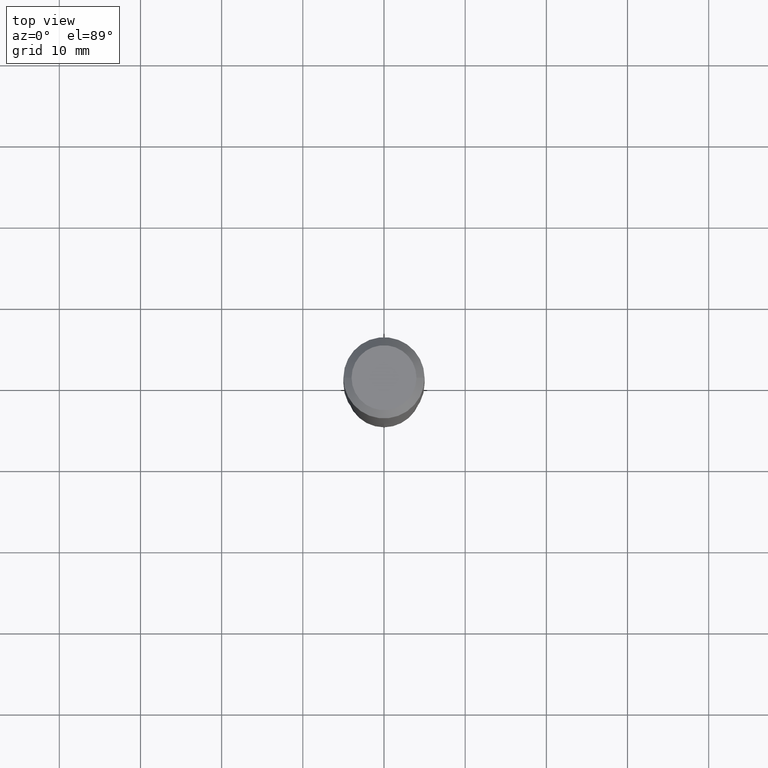
[diagram: clean part render]
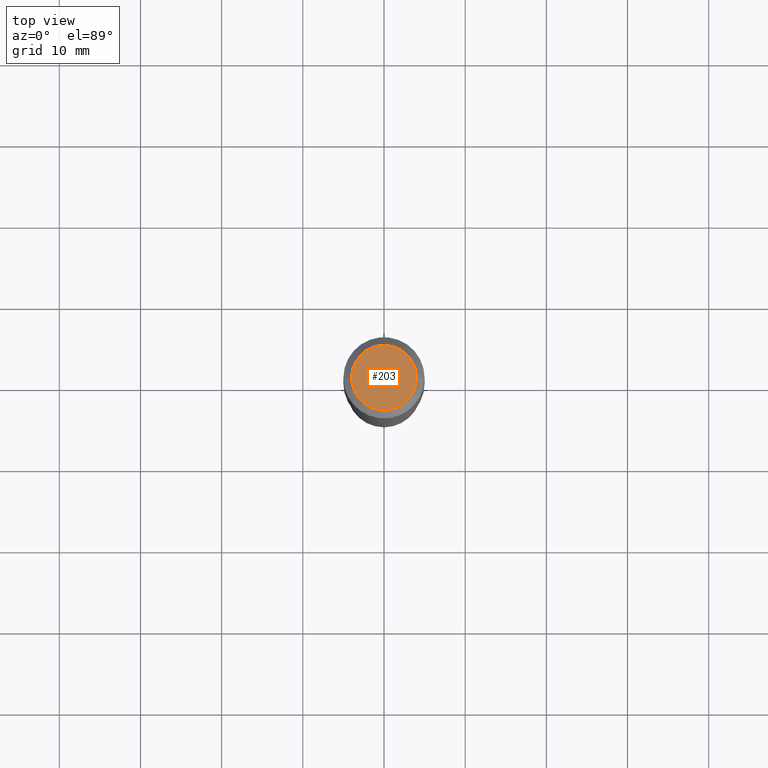
[diagram: same view with one face highlighted and labeled with its STEP entity id]
A machine part, top view. The second image highlights one B-rep face of the part: STEP entity #203.
In plain terms, the highlighted planar face has unit normal (0, -0, -1).
Its self-contained STEP definition (entity closure, byte-faithful):
#3 = DIRECTION ( 'NONE',  ( 2.438088387897960049E-29, -3.491481338843145188E-15, -1.000000000000000000 ) ) ;
#11 = CIRCLE ( 'NONE', #209, 0.1574800000000000089 ) ;
#57 = EDGE_CURVE ( 'NONE', #213, #336, #11, .T. ) ;
#78 = FACE_OUTER_BOUND ( 'NONE', #481, .T. ) ;
#84 = CARTESIAN_POINT ( 'NONE',  ( 0.1574800000000000089, -1.284169937930321189E-15, 3.855188123724205385E-18 ) ) ;
#85 = DIRECTION ( 'NONE',  ( 1.000000000000000000, -6.982962677686265922E-15, 4.876223630392693006E-29 ) ) ;
#110 = CARTESIAN_POINT ( 'NONE',  ( -4.713871149261283817E-47, 6.730158695841841775E-33, 1.927594061857935365E-18 ) ) ;
#133 = ORIENTED_EDGE ( 'NONE', *, *, #254, .T. ) ;
#162 = ORIENTED_EDGE ( 'NONE', *, *, #57, .T. ) ;
#201 = DIRECTION ( 'NONE',  ( -2.445468806185136597E-29, 3.491481338843145583E-15, 1.000000000000000000 ) ) ;
#203 = ADVANCED_FACE ( 'NONE', ( #78 ), #298, .F. ) ;
#209 = AXIS2_PLACEMENT_3D ( 'NONE', #308, #385, #338 ) ;
#213 = VERTEX_POINT ( 'NONE', #311 ) ;
#254 = EDGE_CURVE ( 'NONE', #336, #213, #273, .T. ) ;
#264 = AXIS2_PLACEMENT_3D ( 'NONE', #356, #201, #85 ) ;
#273 = CIRCLE ( 'NONE', #264, 0.1574800000000000089 ) ;
#298 = PLANE ( 'NONE',  #476 ) ;
#308 = CARTESIAN_POINT ( 'NONE',  ( -9.427742298522567634E-47, 1.346031739168368355E-32, 3.855188123715870730E-18 ) ) ;
#311 = CARTESIAN_POINT ( 'NONE',  ( -0.1574800000000000089, 1.168406772637159618E-15, 3.855188123707939751E-18 ) ) ;
#336 = VERTEX_POINT ( 'NONE', #84 ) ;
#338 = DIRECTION ( 'NONE',  ( 1.000000000000000000, -6.982962677686265922E-15, 4.876223630392693006E-29 ) ) ;
#340 = DIRECTION ( 'NONE',  ( -1.000000000000000000, 6.982962677686265922E-15, -4.876176775795935793E-29 ) ) ;
#356 = CARTESIAN_POINT ( 'NONE',  ( -9.427742298522567634E-47, 1.346031739168368355E-32, 3.855188123715870730E-18 ) ) ;
#385 = DIRECTION ( 'NONE',  ( -2.445468806185136597E-29, 3.491481338843145583E-15, 1.000000000000000000 ) ) ;
#476 = AXIS2_PLACEMENT_3D ( 'NONE', #110, #3, #340 ) ;
#481 = EDGE_LOOP ( 'NONE', ( #162, #133 ) ) ;